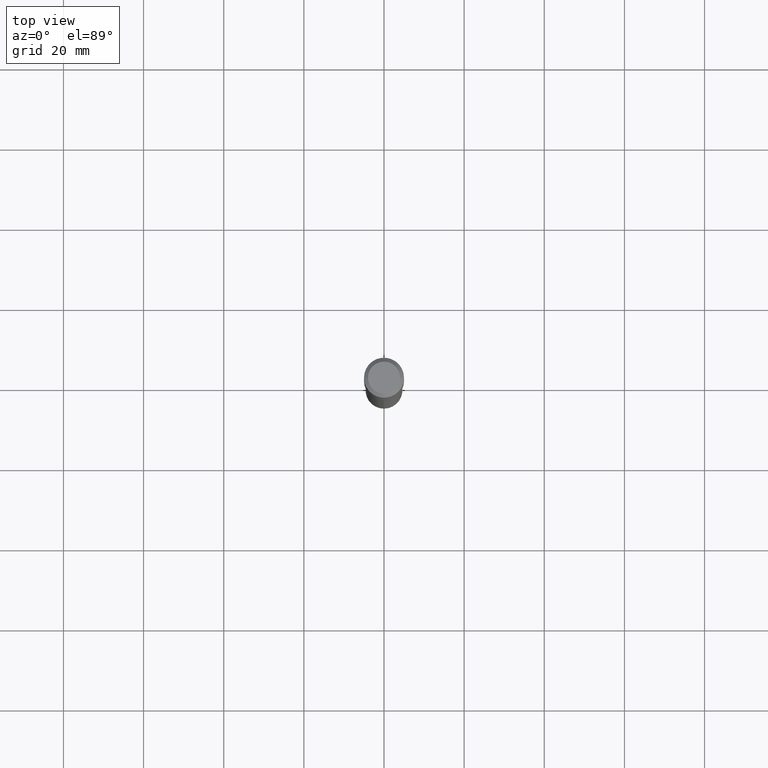
[diagram: clean part render]
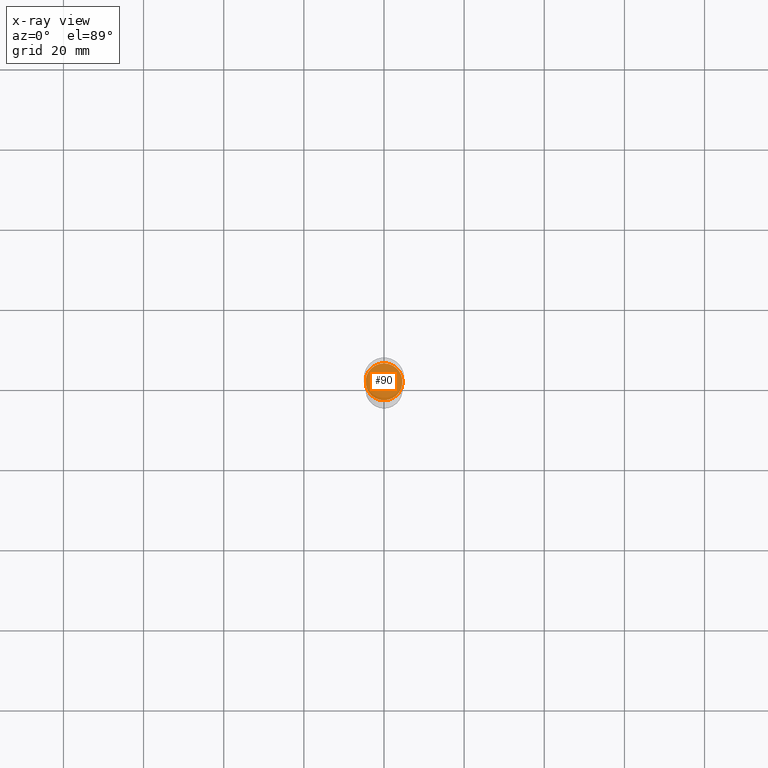
[diagram: x-ray — body ghosted, one internal face saturated and labeled with its STEP entity id]
A machine part, top view, then the same camera in x-ray: the body is ghosted and one INTERNAL B-rep face — a face not visible from any outside direction — is saturated and labeled: STEP entity #90.
In plain terms, the highlighted planar face has unit normal (0, -0, -1).
Its self-contained STEP definition (entity closure, byte-faithful):
#3 = CARTESIAN_POINT ( 'NONE',  ( 5.852740493842886535E-29, -8.356162288253299515E-15, -2.393299999999999983 ) ) ;
#27 = DIRECTION ( 'NONE',  ( -6.982962677686266711E-15, -1.000000000000000000, 3.016949744521549444E-15 ) ) ;
#79 = DIRECTION ( 'NONE',  ( -6.982962677686266711E-15, -1.000000000000000000, 3.016949744521549444E-15 ) ) ;
#88 = EDGE_CURVE ( 'NONE', #432, #360, #386, .T. ) ;
#89 = CIRCLE ( 'NONE', #350, 0.1811000000000000110 ) ;
#90 = ADVANCED_FACE ( 'NONE', ( #477 ), #443, .F. ) ;
#152 = DIRECTION ( 'NONE',  ( 2.445443041397913798E-29, -3.491518235484888646E-15, -1.000000000000000000 ) ) ;
#173 = CARTESIAN_POINT ( 'NONE',  ( 5.852740493842886535E-29, -8.356162288253299515E-15, -2.393299999999999983 ) ) ;
#181 = EDGE_CURVE ( 'NONE', #360, #432, #89, .T. ) ;
#222 = CARTESIAN_POINT ( 'NONE',  ( 5.852740493842886535E-29, -8.356162288253299515E-15, -2.393299999999999983 ) ) ;
#246 = ORIENTED_EDGE ( 'NONE', *, *, #88, .T. ) ;
#274 = AXIS2_PLACEMENT_3D ( 'NONE', #173, #152, #282 ) ;
#282 = DIRECTION ( 'NONE',  ( 6.982962677686265922E-15, 1.000000000000000000, -3.491518235484888646E-15 ) ) ;
#317 = CARTESIAN_POINT ( 'NONE',  ( -1.264614540928924366E-15, -0.1811000000000083932, -2.393299999999999095 ) ) ;
#329 = DIRECTION ( 'NONE',  ( -2.445443041397914078E-29, 3.491518235484888646E-15, 1.000000000000000000 ) ) ;
#339 = DIRECTION ( 'NONE',  ( -2.445443041397914078E-29, 3.491518235484888646E-15, 1.000000000000000000 ) ) ;
#350 = AXIS2_PLACEMENT_3D ( 'NONE', #3, #339, #79 ) ;
#360 = VERTEX_POINT ( 'NONE', #489 ) ;
#386 = CIRCLE ( 'NONE', #392, 0.1811000000000000110 ) ;
#389 = ORIENTED_EDGE ( 'NONE', *, *, #181, .T. ) ;
#392 = AXIS2_PLACEMENT_3D ( 'NONE', #222, #329, #27 ) ;
#403 = EDGE_LOOP ( 'NONE', ( #246, #389 ) ) ;
#432 = VERTEX_POINT ( 'NONE', #317 ) ;
#443 = PLANE ( 'NONE',  #274 ) ;
#477 = FACE_OUTER_BOUND ( 'NONE', #403, .T. ) ;
#489 = CARTESIAN_POINT ( 'NONE',  ( 1.286792894461715458E-15, 0.1810999999999916565, -2.393300000000000427 ) ) ;